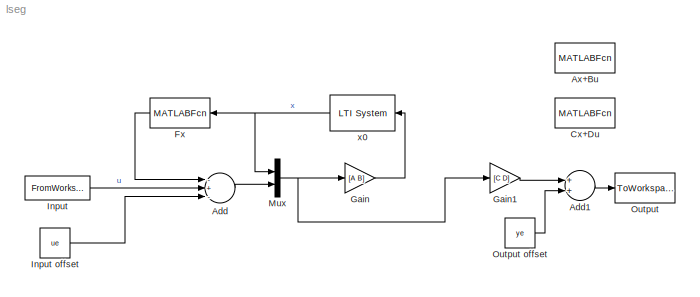
MODEL lseg
KIND model
BLOCK [Sum] Add
  InputSameDT = off
  Inputs = -+-
  OutDataTypeStr = Inherit: Inherit via internal rule
  Ports = [3, 1]
  SID = 1
  SaturateOnIntegerOverflow = off
BLOCK [Sum] Add1
  InputSameDT = off
  OutDataTypeStr = Inherit: Inherit via internal rule
  Ports = [2, 1]
  SID = 2
  SaturateOnIntegerOverflow = off
BLOCK [MATLABFcn] Ax+Bu
  Commented = on
  MATLABFcn = [A B]*u
  Ports = [1, 1]
  SID = 3
BLOCK [MATLABFcn] Cx+Du
  Commented = on
  MATLABFcn = [C D]*u
  Ports = [1, 1]
  SID = 4
BLOCK [MATLABFcn] Fx
  MATLABFcn = [F*u;0]
  Ports = [1, 1]
  SID = 5
BLOCK [Gain] Gain
  Gain = [A B]
  Multiplication = Matrix(K*u)
  OutDataTypeStr = Inherit: Inherit via internal rule
  ParamDataTypeStr = Inherit: Inherit via internal rule
  SID = 12
  SaturateOnIntegerOverflow = off
BLOCK [Gain] Gain1
  Gain = [C D]
  Multiplication = Matrix(K*u)
  OutDataTypeStr = Inherit: Inherit via internal rule
  ParamDataTypeStr = Inherit: Inherit via internal rule
  SID = 13
  SaturateOnIntegerOverflow = off
BLOCK [FromWorkspace] Input
  OutputAfterFinalValue = Setting to zero
  SID = 6
  SampleTime = 0
  VariableName = in
BLOCK [Constant] Input offset
  SID = 7
  Value = ue
BLOCK [Mux] Mux
  DisplayOption = bar
  Inputs = 2
  Ports = [2, 1]
  SID = 8
BLOCK [ToWorkspace] Output
  MaxDataPoints = inf
  Ports = [1]
  SID = 9
  SampleTime = -1
  SaveFormat = Structure With Time
  VariableName = out
BLOCK [Constant] Output offset
  SID = 10
  Value = ye
BLOCK [Reference] x0  REF=cstblocks/LTI System
  IC = x0
  Ports = [1, 1]
  SID = 11
  SourceBlock = cstblocks/LTI System
  SourceProductBaseCode = CT
  SourceProductName = Control System Toolbox
  SourceType = LTI Block
  sys = integrator
LINE Add1:1 -> Output:1
LINE Add:1 -> Mux:2
LINE Fx:1 -> Add:1
LINE Gain1:1 -> Add1:1
LINE Gain:1 -> x0:1
LINE Input offset:1 -> Add:3
LINE Input:1 -> Add:2
NET Mux:1 -> Gain1:1, Gain:1
LINE Output offset:1 -> Add1:2
NET x0:1 -> Fx:1, Mux:1
note: NET lines group one-source signal fan-out (src -> all destinations, sorted); 1:1 wires keep LINE
